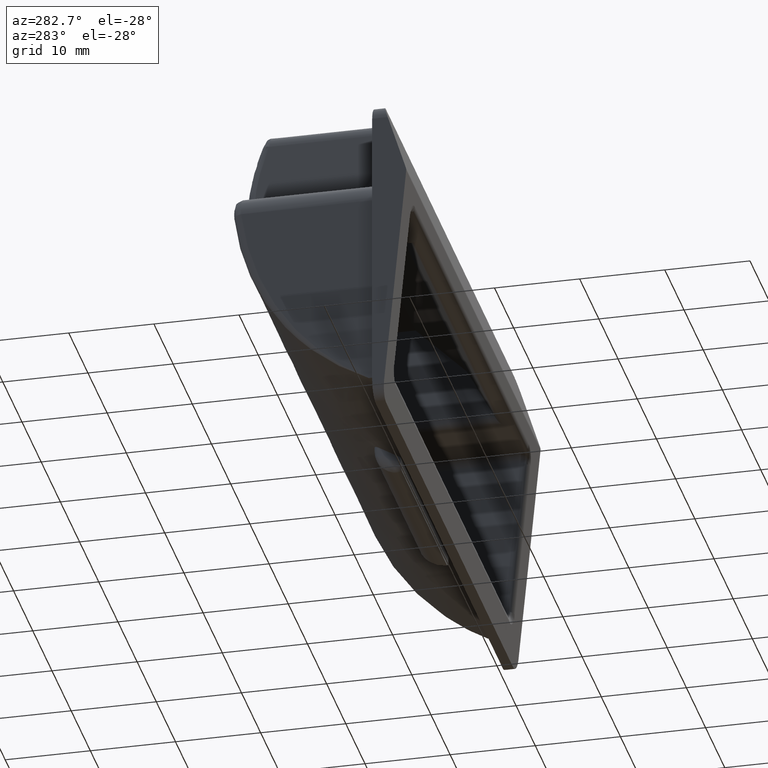
[diagram: clean part render]
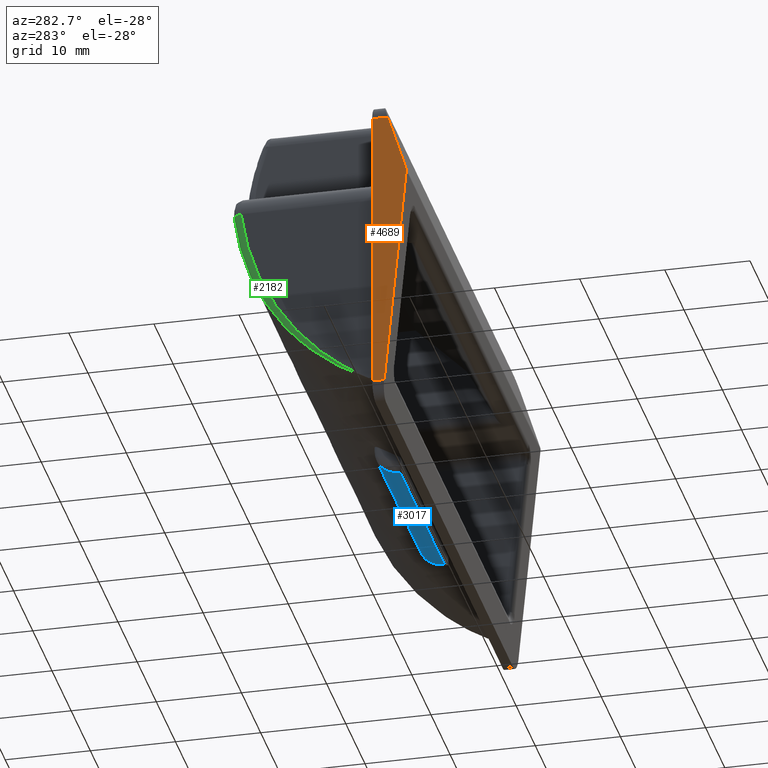
[diagram: same view with three faces highlighted in distinct colors, each labeled with its STEP entity id]
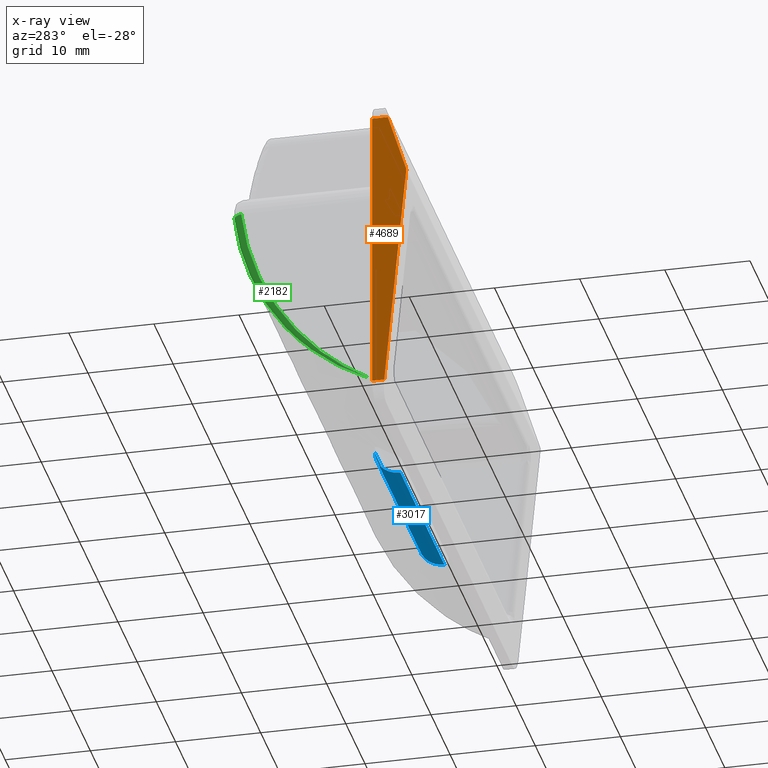
[diagram: x-ray of the same camera — body ghosted, the three highlighted faces saturated]
A machine part, auxiliary view with three faces highlighted in distinct colors.
The next image is the same camera in x-ray (body ghosted, the three faces saturated) — at least one of them is partly hidden behind the body in this view.
Their STEP definitions:

[orange] entity #4689 — the highlighted face is a freeform B-spline surface patch.
#4463=CARTESIAN_POINT('',(-35.0,0.0,16.250000000000000));
#4464=VERTEX_POINT('',#4463);
#4480=CARTESIAN_POINT('',(-35.0,-1.836968437505390,16.250000000000000));
#4481=VERTEX_POINT('',#4480);
#4482=CARTESIAN_POINT('',(-35.0,-1.836968437505390,16.250000000000000));
#4483=CARTESIAN_POINT('',(-35.0,0.0,16.250000000000000));
#4484=QUASI_UNIFORM_CURVE('',1,(#4482,#4483),.UNSPECIFIED.,.F.,.U.);
#4485=EDGE_CURVE('',#4481,#4464,#4484,.T.);
#4524=CARTESIAN_POINT('',(-35.0,-1.407849663559050,-17.750000000000000));
#4525=VERTEX_POINT('',#4524);
#4541=CARTESIAN_POINT('',(-35.0,0.0,-17.750000000000000));
#4542=VERTEX_POINT('',#4541);
#4543=CARTESIAN_POINT('',(-35.0,0.0,-17.750000000000000));
#4544=CARTESIAN_POINT('',(-35.0,-1.407849663559050,-17.750000000000000));
#4545=QUASI_UNIFORM_CURVE('',1,(#4543,#4544),.UNSPECIFIED.,.F.,.U.);
#4546=EDGE_CURVE('',#4542,#4525,#4545,.T.);
#4648=CARTESIAN_POINT('',(-35.0,-4.199793837483012,-19.448299934101399));
#4649=CARTESIAN_POINT('',(-35.0,0.199799806730586,-19.448299934101399));
#4650=CARTESIAN_POINT('',(-35.0,-4.199793837483012,17.948300846052469));
#4651=CARTESIAN_POINT('',(-35.0,0.199799806730586,17.948300846052469));
#4652=B_SPLINE_SURFACE_WITH_KNOTS('',1,1,((#4648,#4650),(#4649,#4651)),.UNSPECIFIED.,.F.,.F.,.U.,(2,2),(2,2),(0.0,4.399593644213598),(0.0,37.396600780153882),.UNSPECIFIED.);
#4653=CARTESIAN_POINT('',(-35.0,0.0,-17.750000000000000));
#4654=CARTESIAN_POINT('',(-35.0,0.0,16.250000000000000));
#4655=QUASI_UNIFORM_CURVE('',1,(#4653,#4654),.UNSPECIFIED.,.F.,.U.);
#4656=EDGE_CURVE('',#4542,#4464,#4655,.T.);
#4657=ORIENTED_EDGE('',*,*,#4656,.F.);
#4658=ORIENTED_EDGE('',*,*,#4546,.T.);
#4659=CARTESIAN_POINT('',(-35.0,-3.995371220189640,9.049330407958740));
#4660=VERTEX_POINT('',#4659);
#4661=CARTESIAN_POINT('',(-35.0,-3.995371220189640,9.049330407958740));
#4662=CARTESIAN_POINT('',(-35.0,-1.407849663559050,-17.750000000000000));
#4663=QUASI_UNIFORM_CURVE('',1,(#4661,#4662),.UNSPECIFIED.,.F.,.U.);
#4664=EDGE_CURVE('',#4660,#4525,#4663,.T.);
#4665=ORIENTED_EDGE('',*,*,#4664,.F.);
#4666=CARTESIAN_POINT('',(-35.0,-3.954856776330780,9.442501768061590));
#4667=VERTEX_POINT('',#4666);
#4668=CARTESIAN_POINT('',(-35.0,-3.954856776330780,9.442501768061590));
#4669=CARTESIAN_POINT('',(-35.0,-4.014746215283279,9.249999999999998));
#4670=CARTESIAN_POINT('',(-35.0,-3.995371220189639,9.049330407958740));
#4678=(BOUNDED_CURVE()B_SPLINE_CURVE(2,(#4668,#4669,#4670),.UNSPECIFIED.,.F.,.U.)CURVE()GEOMETRIC_REPRESENTATION_ITEM()QUASI_UNIFORM_CURVE()RATIONAL_B_SPLINE_CURVE((1.0,0.980277366543990,1.0))REPRESENTATION_ITEM(''));
#4679=EDGE_CURVE('',#4667,#4660,#4678,.T.);
#4680=ORIENTED_EDGE('',*,*,#4679,.F.);
#4681=CARTESIAN_POINT('',(-35.0,-1.836968437505390,16.250000000000000));
#4682=CARTESIAN_POINT('',(-35.0,-3.954856776330780,9.442501768061590));
#4683=QUASI_UNIFORM_CURVE('',1,(#4681,#4682),.UNSPECIFIED.,.F.,.U.);
#4684=EDGE_CURVE('',#4481,#4667,#4683,.T.);
#4685=ORIENTED_EDGE('',*,*,#4684,.F.);
#4686=ORIENTED_EDGE('',*,*,#4485,.T.);
#4687=EDGE_LOOP('',(#4657,#4658,#4665,#4680,#4685,#4686));
#4688=FACE_OUTER_BOUND('',#4687,.T.);
#4689=ADVANCED_FACE('',(#4688),#4652,.F.);

[blue] entity #3017 — the highlighted face is a freeform B-spline surface patch.
#412=CARTESIAN_POINT('',(11.500000000000000,2.000000000000115,-17.250000000000000));
#413=VERTEX_POINT('',#412);
#501=CARTESIAN_POINT('',(11.500000000000000,5.0,-14.250000000000000));
#502=VERTEX_POINT('',#501);
#503=CARTESIAN_POINT('',(11.500000000000000,5.0,-14.250000000000000));
#504=CARTESIAN_POINT('',(11.500000000000000,5.000000000000116,-17.250000000000004));
#505=CARTESIAN_POINT('',(11.500000000000000,2.000000000000115,-17.250000000000000));
#513=(BOUNDED_CURVE()B_SPLINE_CURVE(2,(#503,#504,#505),.UNSPECIFIED.,.F.,.U.)CURVE()GEOMETRIC_REPRESENTATION_ITEM()QUASI_UNIFORM_CURVE()RATIONAL_B_SPLINE_CURVE((1.0,0.707106781186548,1.0))REPRESENTATION_ITEM(''));
#514=EDGE_CURVE('',#502,#413,#513,.T.);
#594=CARTESIAN_POINT('',(-11.500000000000000,2.000000000000115,-17.250000000000000));
#595=VERTEX_POINT('',#594);
#658=CARTESIAN_POINT('',(-11.500000000000000,5.0,-14.250000000000000));
#659=VERTEX_POINT('',#658);
#673=CARTESIAN_POINT('',(-11.500000000000000,2.000000000000115,-17.250000000000000));
#674=CARTESIAN_POINT('',(-11.500000000000000,5.000000000000116,-17.250000000000004));
#675=CARTESIAN_POINT('',(-11.500000000000000,5.000000000000116,-14.250000000000000));
#683=(BOUNDED_CURVE()B_SPLINE_CURVE(2,(#673,#674,#675),.UNSPECIFIED.,.F.,.U.)CURVE()GEOMETRIC_REPRESENTATION_ITEM()QUASI_UNIFORM_CURVE()RATIONAL_B_SPLINE_CURVE((1.0,0.707106781186548,1.0))REPRESENTATION_ITEM(''));
#684=EDGE_CURVE('',#595,#659,#683,.T.);
#2984=CARTESIAN_POINT('',(11.500000000000000,2.000000000000115,-17.250000000000000));
#2985=CARTESIAN_POINT('',(-11.500000000000000,2.000000000000115,-17.250000000000000));
#2986=QUASI_UNIFORM_CURVE('',1,(#2984,#2985),.UNSPECIFIED.,.F.,.U.);
#2987=EDGE_CURVE('',#413,#595,#2986,.T.);
#2993=CARTESIAN_POINT('',(12.074999999999999,1.921469155076495,-17.248971974926668));
#2994=CARTESIAN_POINT('',(-12.089375000000000,1.921469155076495,-17.248971974926668));
#2995=CARTESIAN_POINT('',(12.075000000000003,5.224954401664273,-17.335476780498784));
#2996=CARTESIAN_POINT('',(-12.089375000000004,5.224954401664273,-17.335476780498784));
#2997=CARTESIAN_POINT('',(12.075000000000005,4.992573438142542,-14.039039773122049));
#2998=CARTESIAN_POINT('',(-12.089375000000011,4.992573438142542,-14.039039773122049));
#3006=(BOUNDED_SURFACE()B_SPLINE_SURFACE(1,2,((#2993,#2995,#2997),(#2994,#2996,#2998)),.UNSPECIFIED.,.F.,.F.,.U.)B_SPLINE_SURFACE_WITH_KNOTS((2,2),(3,3),(0.0,24.164375000000010),(0.0,5.313427032265087),.UNSPECIFIED.)GEOMETRIC_REPRESENTATION_ITEM()RATIONAL_B_SPLINE_SURFACE(((1.0,0.670944223154768,0.996392648609106),(1.0,0.670944223154768,0.996392648609106)))REPRESENTATION_ITEM('')SURFACE());
#3007=ORIENTED_EDGE('',*,*,#2987,.T.);
#3008=ORIENTED_EDGE('',*,*,#684,.T.);
#3009=CARTESIAN_POINT('',(11.500000000000000,5.0,-14.250000000000000));
#3010=CARTESIAN_POINT('',(-11.500000000000000,5.0,-14.250000000000000));
#3011=QUASI_UNIFORM_CURVE('',1,(#3009,#3010),.UNSPECIFIED.,.F.,.U.);
#3012=EDGE_CURVE('',#502,#659,#3011,.T.);
#3013=ORIENTED_EDGE('',*,*,#3012,.F.);
#3014=ORIENTED_EDGE('',*,*,#514,.T.);
#3015=EDGE_LOOP('',(#3007,#3008,#3013,#3014));
#3016=FACE_OUTER_BOUND('',#3015,.T.);
#3017=ADVANCED_FACE('',(#3016),#3006,.T.);

[green] entity #2182 — the highlighted face is a freeform B-spline surface patch.
#1947=CARTESIAN_POINT('',(-33.0,0.845232578665328,-16.250000000000000));
#1948=CARTESIAN_POINT('',(-32.999999999999936,0.845232578665327,-16.249999999999879));
#1949=CARTESIAN_POINT('',(-33.0,0.845232578665328,-16.250000000000000));
#1950=CARTESIAN_POINT('',(-32.937499881618351,1.933522280366724,-15.712333294949101));
#1951=CARTESIAN_POINT('',(-33.000000000029495,1.933522285790686,-15.712333292196409));
#1952=CARTESIAN_POINT('',(-33.0,1.905856945239279,-15.656288401383950));
#1953=CARTESIAN_POINT('',(-32.874999999946802,2.988001279042979,-15.106252171942851));
#1954=CARTESIAN_POINT('',(-32.999999999991552,2.988001279074649,-15.106252171961986));
#1955=CARTESIAN_POINT('',(-33.0,2.925545588159634,-14.997692320091961));
#1956=CARTESIAN_POINT('',(-32.751953125053213,5.012762166781489,-13.766789275586421));
#1957=CARTESIAN_POINT('',(-33.000000000008392,5.012762166749725,-13.766789275567259));
#1958=CARTESIAN_POINT('',(-33.0,4.869393981784070,-13.564221335260640));
#1959=CARTESIAN_POINT('',(-32.691406250032699,5.983033610392418,-13.033414066888801));
#1960=CARTESIAN_POINT('',(-33.000000000021039,5.983033610333686,-13.033414066859452));
#1961=CARTESIAN_POINT('',(-33.0,5.793533112746739,-12.789373324641360));
#1962=CARTESIAN_POINT('',(-32.574218749967187,7.824095123360008,-11.450912879302740));
#1963=CARTESIAN_POINT('',(-32.999999999978968,7.824095123418732,-11.450912879332170));
#1964=CARTESIAN_POINT('',(-33.0,7.534895445766829,-11.138039999117240));
#1965=CARTESIAN_POINT('',(-32.517578124928903,8.694877570254100,-10.601793452371981));
#1966=CARTESIAN_POINT('',(-33.000000000021068,8.694877570280587,-10.601793452420495));
#1967=CARTESIAN_POINT('',(-33.0,8.352121328734278,-10.261569079112800));
#1968=CARTESIAN_POINT('',(-32.410156250071012,10.323247535999240,-8.801174459379128));
#1969=CARTESIAN_POINT('',(-32.999999999978918,10.323247535972749,-8.801174459330683));
#1970=CARTESIAN_POINT('',(-33.0,9.870713142977849,-8.422186501565060));
#1971=CARTESIAN_POINT('',(-32.359374999972253,11.080828312979101,-7.849682348343431));
#1972=CARTESIAN_POINT('',(-33.000000000016769,11.080828312972379,-7.849682348351545));
#1973=CARTESIAN_POINT('',(-33.0,10.572084289503540,-7.459287656249400));
#1974=CARTESIAN_POINT('',(-32.265625000027647,12.470863925681840,-5.859300852586920));
#1975=CARTESIAN_POINT('',(-32.999999999983096,12.470863925688569,-5.859300852578762));
#1976=CARTESIAN_POINT('',(-33.0,11.852304900396099,-5.462413615348560));
#1977=CARTESIAN_POINT('',(-32.222656249960643,13.103313006305861,-4.820419708547941));
#1978=CARTESIAN_POINT('',(-33.000000000004121,13.103313006313961,-4.820419708554116));
#1979=CARTESIAN_POINT('',(-33.0,12.431161678580599,-4.428449217731620));
#1980=CARTESIAN_POINT('',(-32.146484375039350,14.233124637669199,-2.671619303469285));
#1981=CARTESIAN_POINT('',(-32.999999999995723,14.233124637661081,-2.671619303463059));
#1982=CARTESIAN_POINT('',(-33.0,13.461784403139720,-2.304620486128470));
#1983=CARTESIAN_POINT('',(-32.113281249961403,14.730482510704739,-1.561708939002835));
#1984=CARTESIAN_POINT('',(-32.999999999962078,14.730482510721357,-1.561708938994409));
#1985=CARTESIAN_POINT('',(-33.0,13.913559255802319,-1.214764601391720));
#1986=CARTESIAN_POINT('',(-32.058593750038597,15.582278417528300,0.711672075335969));
#1987=CARTESIAN_POINT('',(-33.000000000037879,15.582278417511679,0.711672075327583));
#1988=CARTESIAN_POINT('',(-33.0,14.687296222914821,1.006148619472976));
#1989=CARTESIAN_POINT('',(-32.037109374974449,15.936712924666400,1.875133312837100));
#1990=CARTESIAN_POINT('',(-32.999999999983068,15.936712924665374,1.875133312841297));
#1991=CARTESIAN_POINT('',(-33.0,15.009268279061200,2.137200081528370));
#1992=CARTESIAN_POINT('',(-32.007812500025452,16.497079424869099,4.237294799419046));
#1993=CARTESIAN_POINT('',(-33.000000000016790,16.497079424870194,4.237294799414842));
#1994=CARTESIAN_POINT('',(-33.0,15.522240054381751,4.426499564255235));
#1995=CARTESIAN_POINT('',(-32.000000000269452,16.703008850749299,5.435982975327950));
#1996=CARTESIAN_POINT('',(-32.999999999987374,16.703008850547306,5.435982975352800));
#1997=CARTESIAN_POINT('',(-33.0,15.713251804900249,5.584759628465320));
#1998=CARTESIAN_POINT('',(-32.0,16.833065450369752,6.642857142857049));
#1999=CARTESIAN_POINT('',(-32.999999999999950,16.833065450369801,6.642857142857043));
#2000=CARTESIAN_POINT('',(-33.0,15.838821814150100,6.749999999999909));
#2008=(BOUNDED_SURFACE()B_SPLINE_SURFACE(2,3,((#1947,#1950,#1953,#1956,#1959,#1962,#1965,#1968,#1971,#1974,#1977,#1980,#1983,#1986,#1989,#1992,#1995,#1998),(#1948,#1951,#1954,#1957,#1960,#1963,#1966,#1969,#1972,#1975,#1978,#1981,#1984,#1987,#1990,#1993,#1996,#1999),(#1949,#1952,#1955,#1958,#1961,#1964,#1967,#1970,#1973,#1976,#1979,#1982,#1985,#1988,#1991,#1994,#1997,#2000)),.UNSPECIFIED.,.F.,.F.,.U.)B_SPLINE_SURFACE_WITH_KNOTS((3,3),(4,2,2,2,2,2,2,2,4),(0.0,1.0),(0.458874205014118,0.584445855723981,0.710017506433844,0.835589157143708,0.961160807853571,1.086732458563434,1.212304109273298,1.337875759983162,1.463447410693024),.UNSPECIFIED.)GEOMETRIC_REPRESENTATION_ITEM()RATIONAL_B_SPLINE_SURFACE(((1.0,1.0,1.0,1.0,1.0,1.0,1.0,1.0,1.0,1.0,1.0,1.0,1.0,1.0,1.0,1.0,1.0,1.0),(0.707106781186548,0.707106781186548,0.707106781186548,0.707106781186548,0.707106781186548,0.707106781186548,0.707106781186548,0.707106781186548,0.707106781186548,0.707106781186548,0.707106781186548,0.707106781186548,0.707106781186548,0.707106781186548,0.707106781186548,0.707106781186548,0.707106781186548,0.707106781186548),(1.0,1.0,1.0,1.0,1.0,1.0,1.0,1.0,1.0,1.0,1.0,1.0,1.0,1.0,1.0,1.0,1.0,1.0)))REPRESENTATION_ITEM('')SURFACE());
#2009=CARTESIAN_POINT('',(-33.0,0.845232578665328,-16.250000000000000));
#2010=VERTEX_POINT('',#2009);
#2011=CARTESIAN_POINT('',(-32.0,16.833065450369752,6.642857142857049));
#2012=VERTEX_POINT('',#2011);
#2013=CARTESIAN_POINT('',(-33.0,0.845232578665328,-16.250000000000000));
#2014=CARTESIAN_POINT('',(-32.998742217443883,0.867126701445313,-16.239163399060271));
#2015=CARTESIAN_POINT('',(-32.996236217188702,0.910748452288344,-16.217572604538660));
#2016=CARTESIAN_POINT('',(-32.992492130969140,0.975828030332117,-16.185101901732999));
#2017=CARTESIAN_POINT('',(-32.988777156025158,1.040334033114973,-16.152730447242661));
#2018=CARTESIAN_POINT('',(-32.985091332134203,1.104260576042300,-16.120447275748159));
#2019=CARTESIAN_POINT('',(-32.981434648760931,1.167611077516724,-16.088260212005100));
#2020=CARTESIAN_POINT('',(-32.977807108693192,1.230386497123503,-16.056172057377530));
#2021=CARTESIAN_POINT('',(-32.974208711192723,1.292588450320877,-16.024186897092211));
#2022=CARTESIAN_POINT('',(-32.970639456454300,1.354218383088242,-15.992308430013139));
#2023=CARTESIAN_POINT('',(-32.967099344425201,1.415277790005642,-15.960540411063210));
#2024=CARTESIAN_POINT('',(-32.963588375118057,1.475768156035690,-15.928886534214900));
#2025=CARTESIAN_POINT('',(-32.960106548529247,1.535690971467403,-15.897350463606600));
#2026=CARTESIAN_POINT('',(-32.956653864658058,1.595047727494916,-15.865935825443991));
#2027=CARTESIAN_POINT('',(-32.953230323504123,1.653839916927627,-15.834646210283751));
#2028=CARTESIAN_POINT('',(-32.949835925065763,1.712069033546507,-15.803485172570580));
#2029=CARTESIAN_POINT('',(-32.946470669342972,1.769736571823689,-15.772456230902030));
#2030=CARTESIAN_POINT('',(-32.943134556334570,1.826844026550382,-15.741562868102161));
#2031=CARTESIAN_POINT('',(-32.939827586039229,1.883392892493840,-15.710808531346659));
#2032=CARTESIAN_POINT('',(-32.936549758456252,1.939384664051346,-15.680196632275420));
#2033=CARTESIAN_POINT('',(-32.933301073584531,1.994820834909504,-15.649730547109270));
#2034=CARTESIAN_POINT('',(-32.930081531422850,2.049702897706848,-15.619413616766639));
#2035=CARTESIAN_POINT('',(-32.926891131970883,2.104032343700220,-15.589249146980890));
#2036=CARTESIAN_POINT('',(-32.923729875226513,2.157810662434579,-15.559240408418351));
#2037=CARTESIAN_POINT('',(-32.920597761188979,2.211039341416758,-15.529390636796810));
#2038=CARTESIAN_POINT('',(-32.917494789856953,2.263719865792496,-15.499703033004490));
#2039=CARTESIAN_POINT('',(-32.914420961229190,2.315853718027307,-15.470180763219560));
#2040=CARTESIAN_POINT('',(-32.911376275304278,2.367442377590815,-15.440826959030041));
#2041=CARTESIAN_POINT('',(-32.908360732081228,2.418487320644718,-15.411644717553870));
#2042=CARTESIAN_POINT('',(-32.905374331558278,2.468990019734245,-15.382637101559689));
#2043=CARTESIAN_POINT('',(-32.902417073733773,2.518951943483265,-15.353807139587531));
#2044=CARTESIAN_POINT('',(-32.899488958606383,2.568374556292814,-15.325157826069850));
#2045=CARTESIAN_POINT('',(-32.896589986174511,2.617259318043239,-15.296692121452940));
#2046=CARTESIAN_POINT('',(-32.893720156436338,2.665607683799767,-15.268412952318210));
#2047=CARTESIAN_POINT('',(-32.890879469390647,2.713421103521637,-15.240323211503730));
#2048=CARTESIAN_POINT('',(-32.888067925035003,2.760701021774630,-15.212425758225891));
#2049=CARTESIAN_POINT('',(-32.885285523367628,2.807448877447151,-15.184723418200971));
#2050=CARTESIAN_POINT('',(-32.882532264387372,2.853666103469753,-15.157218983766731));
#2051=CARTESIAN_POINT('',(-32.879808148090760,2.899354126537910,-15.129915214004070));
#2052=CARTESIAN_POINT('',(-32.877113174476747,2.944514366838583,-15.102814834858430));
#2053=CARTESIAN_POINT('',(-32.874447343542890,2.989148237779813,-15.075920539261160));
#2054=CARTESIAN_POINT('',(-32.871810655286552,3.033257145723917,-15.049234987250751));
#2055=CARTESIAN_POINT('',(-32.869203109705502,3.076842489724051,-15.022760806093860));
#2056=CARTESIAN_POINT('',(-32.866624706797573,3.119905661264088,-14.996500590405960));
#2057=CARTESIAN_POINT('',(-32.864075446559703,3.162448044001811,-14.970456902271980));
#2058=CARTESIAN_POINT('',(-32.861555328989212,3.204471013515576,-14.944632271366370));
#2059=CARTESIAN_POINT('',(-32.859064354083237,3.245975937054162,-14.919029195073060));
#2060=CARTESIAN_POINT('',(-32.856602521838653,3.286964173289997,-14.893650138604841));
#2061=CARTESIAN_POINT('',(-32.854169832252651,3.327437072075680,-14.868497535122479));
#2062=CARTESIAN_POINT('',(-32.851766285321283,3.367395974203687,-14.843573785853360));
#2063=CARTESIAN_POINT('',(-32.849391881041939,3.406842211169558,-14.818881260209540));
#2064=CARTESIAN_POINT('',(-32.847046619410207,3.445777104938024,-14.794422295905470));
#2065=CARTESIAN_POINT('',(-32.844730500422358,3.484201967712664,-14.770199199075099));
#2066=CARTESIAN_POINT('',(-32.842443524074937,3.522118101708621,-14.746214244388289));
#2067=CARTESIAN_POINT('',(-32.840185690363263,3.559526798928524,-14.722469675166881));
#2068=CARTESIAN_POINT('',(-32.837956999282937,3.596429340941656,-14.698967703499850));
#2069=CARTESIAN_POINT('',(-32.835757450829590,3.632826998666376,-14.675710510357970));
#2070=CARTESIAN_POINT('',(-32.833587044997849,3.668721032155265,-14.652700245707861));
#2071=CARTESIAN_POINT('',(-32.831445781782662,3.704112690384787,-14.629939028624610));
#2072=CARTESIAN_POINT('',(-32.829333661180627,3.739003211043793,-14.607428947406410));
#2073=CARTESIAN_POINT('',(-32.827250683175869,3.773393820339802,-14.585172059678090));
#2074=CARTESIAN_POINT('',(-32.825196847800058,3.807285732755831,-14.563170392531710));
#2075=CARTESIAN_POINT('',(-32.823172154910537,3.840680151001867,-14.541425942527860));
#2076=CARTESIAN_POINT('',(-32.821176604997447,3.873578265269375,-14.519940676202340));
#2077=CARTESIAN_POINT('',(-32.819210196236497,3.905981255046865,-14.498716528721490));
#2078=CARTESIAN_POINT('',(-32.817272935259822,3.937890281594637,-14.477755409297020));
#2079=CARTESIAN_POINT('',(-32.815364797814020,3.969306514544178,-14.457059181911390));
#2080=CARTESIAN_POINT('',(-32.797437928500742,4.264358042217940,-14.262141385491651));
#2081=CARTESIAN_POINT('',(-32.764494631294127,4.802854671180455,-13.892589334770040));
#2082=CARTESIAN_POINT('',(-32.717789127174669,5.556461266454789,-13.337811747496639));
#2083=CARTESIAN_POINT('',(-32.674132261556998,6.252518535651880,-12.790898561815920));
#2084=CARTESIAN_POINT('',(-32.630739264570757,6.937209945800698,-12.219289165528201));
#2085=CARTESIAN_POINT('',(-32.587431414997468,7.614048734590952,-11.617830111388381));
#2086=CARTESIAN_POINT('',(-32.544020643251841,8.285690721533403,-10.980824750912729));
#2087=CARTESIAN_POINT('',(-32.502927881247267,8.915658254645313,-10.344613000448650));
#2088=CARTESIAN_POINT('',(-32.462535113273049,9.529958456409544,-9.685365677293488));
#2089=CARTESIAN_POINT('',(-32.422859716178010,10.129144795713501,-9.000749147548904));
#2090=CARTESIAN_POINT('',(-32.383913228807970,10.713344261119580,-8.288301567928276));
#2091=CARTESIAN_POINT('',(-32.347145380028742,11.261686183404089,-7.575048038478923));
#2092=CARTESIAN_POINT('',(-32.311513644853349,11.790723801261510,-6.841433951194937));
#2093=CARTESIAN_POINT('',(-32.277100519654553,12.300170955340100,-6.086298259416755));
#2094=CARTESIAN_POINT('',(-32.243984246192483,12.789486622388550,-5.308475326040161));
#2095=CARTESIAN_POINT('',(-32.213104936771018,13.245626076183020,-4.530215542812610));
#2096=CARTESIAN_POINT('',(-32.183785736849622,13.679523662321211,-3.734696700692993));
#2097=CARTESIAN_POINT('',(-32.156138780508492,14.090613482823910,-2.921410582577508));
#2098=CARTESIAN_POINT('',(-32.130272548889252,14.478167695434159,-2.089888268086901));
#2099=CARTESIAN_POINT('',(-32.106791870240272,14.834000233904581,-1.259289787793875));
#2100=CARTESIAN_POINT('',(-32.091308246291007,15.072497887331140,-0.651309924245761));
#2101=CARTESIAN_POINT('',(-32.082231805245193,15.214185538847589,-0.269842291615069));
#2102=CARTESIAN_POINT('',(-32.078617207070472,15.270881327485149,-0.114488332092413));
#2103=CARTESIAN_POINT('',(-32.075083802688582,15.326580470754260,0.040877382302674));
#2104=CARTESIAN_POINT('',(-32.071631631558539,15.381286550202150,0.196248216479604));
#2105=CARTESIAN_POINT('',(-32.068260683137773,15.435003036412599,0.351617226933227));
#2106=CARTESIAN_POINT('',(-32.064970960239933,15.487733478884120,0.506977620365937));
#2107=CARTESIAN_POINT('',(-32.061762462112291,15.539481454528801,0.662322631242681));
#2108=CARTESIAN_POINT('',(-32.058635188952778,15.590250580658180,0.817645554569368));
#2109=CARTESIAN_POINT('',(-32.055589140707447,15.640044510745540,0.972939737197046));
#2110=CARTESIAN_POINT('',(-32.052624317388641,15.688866934792530,1.128198580198603));
#2111=CARTESIAN_POINT('',(-32.049740718990712,15.736721578469639,1.283415538280639));
#2112=CARTESIAN_POINT('',(-32.046938345512942,15.783612202587570,1.438584119980594));
#2113=CARTESIAN_POINT('',(-32.044217196954172,15.829542602484141,1.593697887647263));
#2114=CARTESIAN_POINT('',(-32.041577273312093,15.874516607437149,1.748750457472495));
#2115=CARTESIAN_POINT('',(-32.039018574585313,15.918538080074240,1.903735499502610));
#2116=CARTESIAN_POINT('',(-32.036541100772517,15.961610915787240,2.058646737648711));
#2117=CARTESIAN_POINT('',(-32.034144851871140,16.003739042149139,2.213477949690729));
#2118=CARTESIAN_POINT('',(-32.031829827880863,16.044926418334150,2.368222967276848));
#2119=CARTESIAN_POINT('',(-32.029596028798821,16.085177034540880,2.522875675917707));
#2120=CARTESIAN_POINT('',(-32.027443454623914,16.124494911418530,2.677430014975830));
#2121=CARTESIAN_POINT('',(-32.025372105353988,16.162884099496239,2.831879977650065));
#2122=CARTESIAN_POINT('',(-32.023381980987793,16.200348678615580,2.986219610955306));
#2123=CARTESIAN_POINT('',(-32.021473081523517,16.236892757366189,3.140443015697332));
#2124=CARTESIAN_POINT('',(-32.019645406959377,16.272520472524612,3.294544346443034));
#2125=CARTESIAN_POINT('',(-32.017898957293127,16.307235988496359,3.448517811485961));
#2126=CARTESIAN_POINT('',(-32.016233732523673,16.341043496761159,3.602357672807242));
#2127=CARTESIAN_POINT('',(-32.014649732649083,16.373947215321579,3.756058246031980));
#2128=CARTESIAN_POINT('',(-32.013146957667523,16.405951388154719,3.909613900381159));
#2129=CARTESIAN_POINT('',(-32.011725407576868,16.437060284667520,4.063019058619137));
#2130=CARTESIAN_POINT('',(-32.010385082375862,16.467278199154880,4.216268196996757));
#2131=CARTESIAN_POINT('',(-32.009125982062272,16.496609450262540,4.369355845189963));
#2132=CARTESIAN_POINT('',(-32.007948106634579,16.525058380447959,4.522276586234862));
#2133=CARTESIAN_POINT('',(-32.006851456090097,16.552629355465101,4.675025056456167));
#2134=CARTESIAN_POINT('',(-32.005836030430586,16.579326763775569,4.827595945399921));
#2135=CARTESIAN_POINT('',(-32.004901829639387,16.605155016250372,4.979983995731131));
#2136=CARTESIAN_POINT('',(-32.004048853769831,16.630118544805949,5.132184003242537));
#2137=CARTESIAN_POINT('',(-32.003277102616558,16.654221805021919,5.284190816430683));
#2138=CARTESIAN_POINT('',(-32.002586576932721,16.677469263961971,5.435999337662997));
#2139=CARTESIAN_POINT('',(-32.001977273907933,16.699865443057220,5.587604518407678));
#2140=CARTESIAN_POINT('',(-32.001449203987868,16.721414756168610,5.739001376532039));
#2141=CARTESIAN_POINT('',(-32.001002328304111,16.742122109614861,5.890184931486364));
#2142=CARTESIAN_POINT('',(-32.000636791440250,16.761990667665302,6.041150444940493));
#2143=CARTESIAN_POINT('',(-32.000352055535359,16.781030162600871,6.191892525109614));
#2144=CARTESIAN_POINT('',(-32.000150121414237,16.799225978952890,6.342408458143981));
#2145=CARTESIAN_POINT('',(-32.000023546072633,16.816654157029149,6.492685814908651));
#2146=CARTESIAN_POINT('',(-32.000007843014622,16.827598975501409,6.592836235111538));
#2147=CARTESIAN_POINT('',(-31.999999999999918,16.833065450369752,6.642857142857027));
#2148=B_SPLINE_CURVE_WITH_KNOTS('',3,(#2013,#2014,#2015,#2016,#2017,#2018,#2019,#2020,#2021,#2022,#2023,#2024,#2025,#2026,#2027,#2028,#2029,#2030,#2031,#2032,#2033,#2034,#2035,#2036,#2037,#2038,#2039,#2040,#2041,#2042,#2043,#2044,#2045,#2046,#2047,#2048,#2049,#2050,#2051,#2052,#2053,#2054,#2055,#2056,#2057,#2058,#2059,#2060,#2061,#2062,#2063,#2064,#2065,#2066,#2067,#2068,#2069,#2070,#2071,#2072,#2073,#2074,#2075,#2076,#2077,#2078,#2079,#2080,#2081,#2082,#2083,#2084,#2085,#2086,#2087,#2088,#2089,#2090,#2091,#2092,#2093,#2094,#2095,#2096,#2097,#2098,#2099,#2100,#2101,#2102,#2103,#2104,#2105,#2106,#2107,#2108,#2109,#2110,#2111,#2112,#2113,#2114,#2115,#2116,#2117,#2118,#2119,#2120,#2121,#2122,#2123,#2124,#2125,#2126,#2127,#2128,#2129,#2130,#2131,#2132,#2133,#2134,#2135,#2136,#2137,#2138,#2139,#2140,#2141,#2142,#2143,#2144,#2145,#2146,#2147),.UNSPECIFIED.,.F.,.U.,(4,1,1,1,1,1,1,1,1,1,1,1,1,1,1,1,1,1,1,1,1,1,1,1,1,1,1,1,1,1,1,1,1,1,1,1,1,1,1,1,1,1,1,1,1,1,1,1,1,1,1,1,1,1,1,1,1,1,1,1,1,1,1,1,1,1,1,1,1,1,1,1,1,1,1,1,1,1,1,1,1,1,1,1,1,1,1,1,1,1,1,1,1,1,1,1,1,1,1,1,1,1,1,1,1,1,1,1,1,1,1,1,1,1,1,1,1,1,1,1,1,1,1,1,1,1,1,1,1,1,1,1,4),(0.0,0.002517269317993,0.005015395962552,0.007494379933545,0.009954221230841,0.012394919854315,0.014816475803847,0.017218889079320,0.019602159680621,0.021966287607641,0.024311272860278,0.026637115438431,0.028943815342007,0.031231372570916,0.033499787125074,0.035749059004400,0.037979188208819,0.040190174738262,0.042382018592666,0.044554719771971,0.046708278276124,0.048842694105077,0.050957967258789,0.053054097737224,0.055131085540354,0.057188930668154,0.059227633120608,0.061247192897707,0.063247609999447,0.065228884425832,0.067191016176874,0.069134005252592,0.071057851653011,0.072962555378166,0.074848116428100,0.076714534802864,0.078561810502517,0.080389943527130,0.082198933876779,0.083988781551553,0.085759486551550,0.087511048876879,0.089243468527657,0.090956745504016,0.092650879806097,0.094325871434055,0.095981720388055,0.097618426668277,0.099235990274914,0.100834411208172,0.102413689468274,0.103973825055457,0.105514817969974,0.107036668212094,0.108539375782105,0.110022940680313,0.111487362907042,0.112932642462637,0.114358779347465,0.115765773561913,0.117153625106393,0.118522333981340,0.119871900187217,0.121202323724511,0.122513604593741,0.123805742795453,0.125078738330228,0.158950640776978,0.191085197432138,0.221482394148129,0.250142219949625,0.282967768818058,0.314750319709118,0.345489893679561,0.375186515201776,0.407559251113045,0.439186440244330,0.470068137546589,0.500204402478461,0.532321472708108,0.563858294767109,0.594814965112738,0.625191585929326,0.657142753293196,0.688619053788369,0.719620634669149,0.750147650168805,0.755833071877582,0.761507193589174,0.767170016440358,0.772821541574726,0.778461770142746,0.784090703301813,0.789708342216303,0.795314688057635,0.800909742004319,0.806493505242017,0.812065978963601,0.817627164369207,0.823177062666297,0.828715675069717,0.834243002801754,0.839759047092199,0.845263809178407,0.850757290305360,0.856239491725722,0.861710414699911,0.867170060496157,0.872618430390564,0.878055525667180,0.883481347618057,0.888895897543319,0.894299176751229,0.899691186558255,0.905071928289137,0.910441403276959,0.915799612863213,0.921146558397873,0.926482241239463,0.931806662755131,0.937119824320720,0.942421727320837,0.947712373148932,0.952991763207372,0.958259898907511,0.963516781669769,0.968762412923713,0.973996794108125,0.979219926671088,0.984431812070062,0.989632451771966,0.994821847253253,1.0),.UNSPECIFIED.);
#2149=EDGE_CURVE('',#2010,#2012,#2148,.T.);
#2150=ORIENTED_EDGE('',*,*,#2149,.F.);
#2151=CARTESIAN_POINT('',(-33.0,15.838821814150100,6.749999999999920));
#2152=VERTEX_POINT('',#2151);
#2153=CARTESIAN_POINT('',(-33.0,15.838821814150100,6.749999999999920));
#2154=CARTESIAN_POINT('',(-33.000000000000171,15.651965026686280,5.014366128057847));
#2155=CARTESIAN_POINT('',(-32.999999999999787,15.078608112444440,2.049891973594816));
#2156=CARTESIAN_POINT('',(-33.000000000000213,13.696337900158190,-1.882270700051865));
#2157=CARTESIAN_POINT('',(-32.999999999999659,12.085641585046750,-5.153176614826569));
#2158=CARTESIAN_POINT('',(-33.000000000000043,10.280309000799701,-7.929885201335776));
#2159=CARTESIAN_POINT('',(-33.000000000000277,8.115167168444007,-10.578453654205010));
#2160=CARTESIAN_POINT('',(-32.999999999999382,5.826275567339536,-12.816062490412010));
#2161=CARTESIAN_POINT('',(-33.000000000001137,3.295423653304509,-14.771935508507660));
#2162=CARTESIAN_POINT('',(-32.999999999998018,1.655517098301921,-15.796474666455509));
#2163=CARTESIAN_POINT('',(-33.0,0.845232578665328,-16.250000000000000));
#2164=B_SPLINE_CURVE_WITH_KNOTS('',3,(#2153,#2154,#2155,#2156,#2157,#2158,#2159,#2160,#2161,#2162,#2163),.UNSPECIFIED.,.F.,.U.,(4,1,1,1,1,1,1,1,4),(-0.000001892205994,5.237141921207634,9.025709010580020,12.479994963077949,16.157134238530080,18.942851009790520,22.731419316228550,25.739992121698009,28.525698504136539),.UNSPECIFIED.);
#2165=EDGE_CURVE('',#2152,#2010,#2164,.T.);
#2166=ORIENTED_EDGE('',*,*,#2165,.F.);
#2167=CARTESIAN_POINT('',(-33.0,15.838821814150100,6.749999999999920));
#2168=CARTESIAN_POINT('',(-33.000000000000163,16.833065450370466,6.642857142863246));
#2169=CARTESIAN_POINT('',(-32.0,16.833065450370199,6.642857142861241));
#2177=(BOUNDED_CURVE()B_SPLINE_CURVE(2,(#2167,#2168,#2169),.UNSPECIFIED.,.F.,.U.)CURVE()GEOMETRIC_REPRESENTATION_ITEM()QUASI_UNIFORM_CURVE()RATIONAL_B_SPLINE_CURVE((1.0,0.707106781186443,1.0))REPRESENTATION_ITEM(''));
#2178=EDGE_CURVE('',#2152,#2012,#2177,.T.);
#2179=ORIENTED_EDGE('',*,*,#2178,.T.);
#2180=EDGE_LOOP('',(#2150,#2166,#2179));
#2181=FACE_OUTER_BOUND('',#2180,.T.);
#2182=ADVANCED_FACE('',(#2181),#2008,.T.);